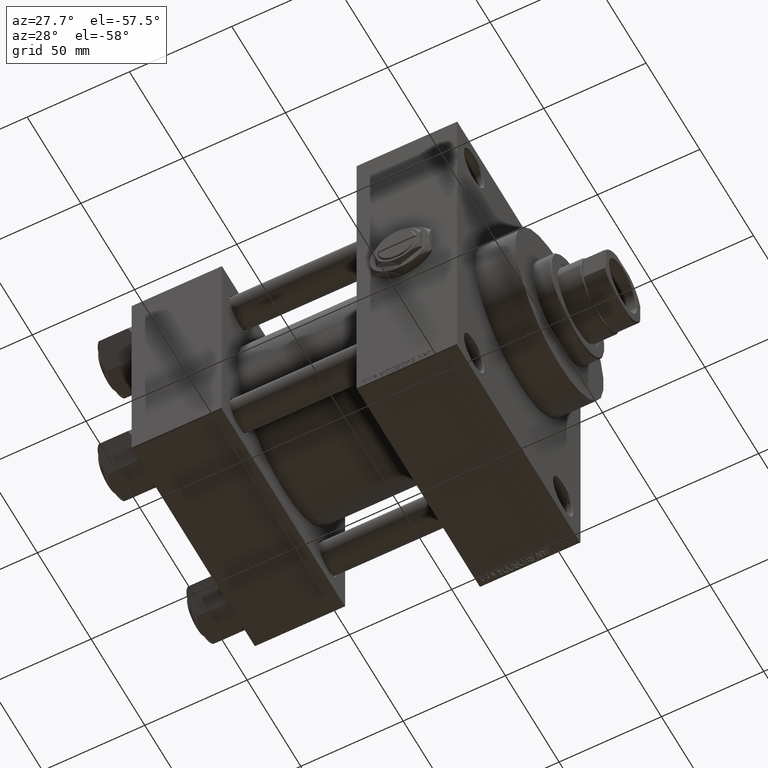
[diagram: clean part render]
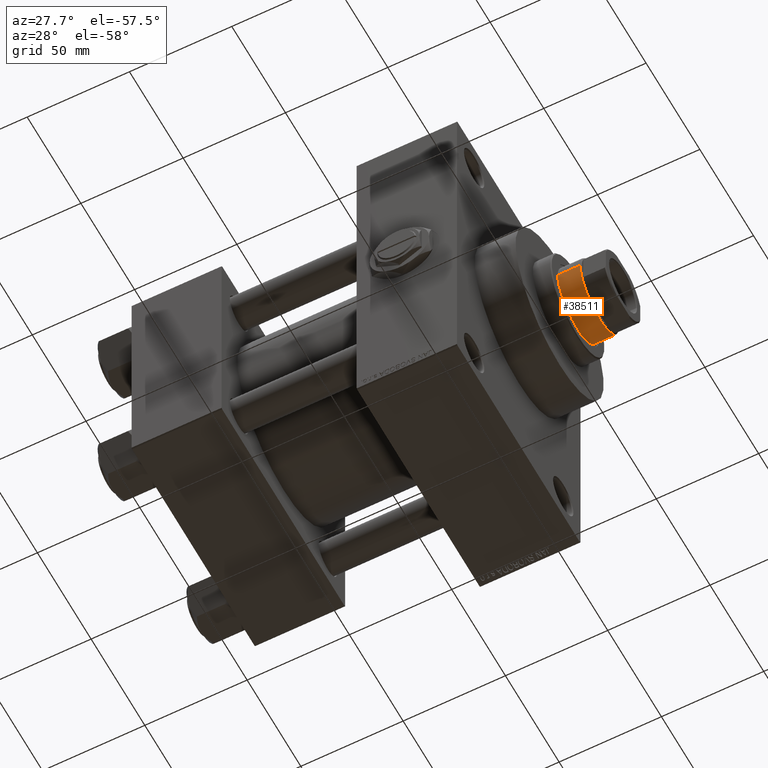
[diagram: same view with one face highlighted and labeled with its STEP entity id]
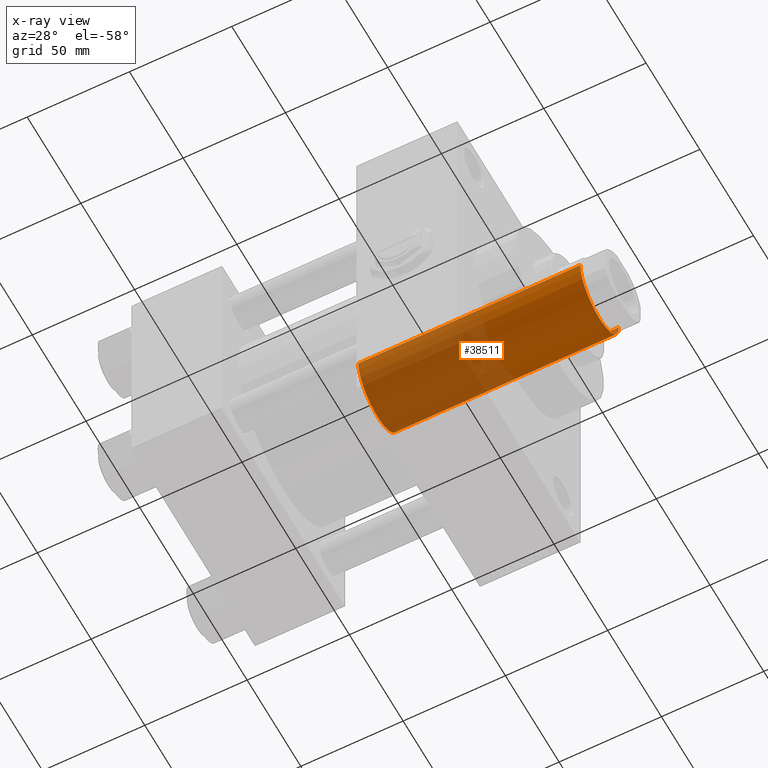
[diagram: x-ray of the same camera — body ghosted, the highlighted face saturated]
A machine part, auxiliary view. The second image highlights one B-rep face of the part: STEP entity #38511.
The next image is the same camera in x-ray: the body ghosted, the highlighted face saturated — about 56% of this face is hidden behind the body in this view.
In plain terms, the highlighted cylindrical surface (partial cylindrical patch) has radius 18 mm, axis along (-1, 0, 0).
Its self-contained STEP definition (entity closure, byte-faithful):
#604 = AXIS2_PLACEMENT_3D ( 'NONE', #18914, #3420, #49196 ) ;
#3178 = VECTOR ( 'NONE', #34016, 1000.000000000000000 ) ;
#3420 = DIRECTION ( 'NONE',  ( 0.000000000000000000, 0.000000000000000000, -1.000000000000000000 ) ) ;
#3618 = DIRECTION ( 'NONE',  ( -0.000000000000000000, -0.000000000000000000, -1.000000000000000000 ) ) ;
#5873 = AXIS2_PLACEMENT_3D ( 'NONE', #41915, #38161, #42160 ) ;
#6046 = CIRCLE ( 'NONE', #32409, 18.00000000000000000 ) ;
#6208 = ORIENTED_EDGE ( 'NONE', *, *, #26599, .T. ) ;
#7114 = CARTESIAN_POINT ( 'NONE',  ( -18.00000000000000000, 0.000000000000000000, 155.0000000000000000 ) ) ;
#9026 = ORIENTED_EDGE ( 'NONE', *, *, #46863, .T. ) ;
#11865 = ORIENTED_EDGE ( 'NONE', *, *, #44013, .F. ) ;
#12856 = EDGE_CURVE ( 'NONE', #26176, #19360, #37241, .T. ) ;
#17311 = CARTESIAN_POINT ( 'NONE',  ( 0.000000000000000000, 0.000000000000000000, 46.00000000000000000 ) ) ;
#18914 = CARTESIAN_POINT ( 'NONE',  ( 0.000000000000000000, 0.000000000000000000, 154.4999999999999716 ) ) ;
#19360 = VERTEX_POINT ( 'NONE', #20876 ) ;
#19595 = VECTOR ( 'NONE', #3618, 1000.000000000000000 ) ;
#20428 = VERTEX_POINT ( 'NONE', #36406 ) ;
#20876 = CARTESIAN_POINT ( 'NONE',  ( 18.00000000000000000, 2.204364238465235428E-15, 154.4999999999999716 ) ) ;
#21076 = LINE ( 'NONE', #24836, #3178 ) ;
#24836 = CARTESIAN_POINT ( 'NONE',  ( 18.00000000000000000, 2.204364238465235428E-15, 155.0000000000000000 ) ) ;
#26176 = VERTEX_POINT ( 'NONE', #46689 ) ;
#26260 = ORIENTED_EDGE ( 'NONE', *, *, #12856, .T. ) ;
#26599 = EDGE_CURVE ( 'NONE', #19360, #39390, #21076, .T. ) ;
#26641 = CYLINDRICAL_SURFACE ( 'NONE', #5873, 18.00000000000000000 ) ;
#32409 = AXIS2_PLACEMENT_3D ( 'NONE', #17311, #32579, #47834 ) ;
#32579 = DIRECTION ( 'NONE',  ( 0.000000000000000000, 0.000000000000000000, 1.000000000000000000 ) ) ;
#34016 = DIRECTION ( 'NONE',  ( -0.000000000000000000, -0.000000000000000000, -1.000000000000000000 ) ) ;
#36406 = CARTESIAN_POINT ( 'NONE',  ( -18.00000000000000000, 0.000000000000000000, 46.00000000000000000 ) ) ;
#37241 = CIRCLE ( 'NONE', #604, 18.00000000000000000 ) ;
#37404 = LINE ( 'NONE', #7114, #19595 ) ;
#37546 = EDGE_LOOP ( 'NONE', ( #26260, #6208, #9026, #11865 ) ) ;
#38161 = DIRECTION ( 'NONE',  ( -0.000000000000000000, -0.000000000000000000, -1.000000000000000000 ) ) ;
#38511 = ADVANCED_FACE ( 'NONE', ( #49408 ), #26641, .T. ) ;
#39346 = CARTESIAN_POINT ( 'NONE',  ( 18.00000000000000000, 2.204364238465235428E-15, 46.00000000000000000 ) ) ;
#39390 = VERTEX_POINT ( 'NONE', #39346 ) ;
#41915 = CARTESIAN_POINT ( 'NONE',  ( 0.000000000000000000, 0.000000000000000000, 155.0000000000000000 ) ) ;
#42160 = DIRECTION ( 'NONE',  ( -1.000000000000000000, 0.000000000000000000, 0.000000000000000000 ) ) ;
#44013 = EDGE_CURVE ( 'NONE', #26176, #20428, #37404, .T. ) ;
#46689 = CARTESIAN_POINT ( 'NONE',  ( -18.00000000000000000, 0.000000000000000000, 154.4999999999999716 ) ) ;
#46863 = EDGE_CURVE ( 'NONE', #39390, #20428, #6046, .T. ) ;
#47834 = DIRECTION ( 'NONE',  ( 1.000000000000000000, 0.000000000000000000, 0.000000000000000000 ) ) ;
#49196 = DIRECTION ( 'NONE',  ( 1.000000000000000000, 0.000000000000000000, 0.000000000000000000 ) ) ;
#49408 = FACE_OUTER_BOUND ( 'NONE', #37546, .T. ) ;